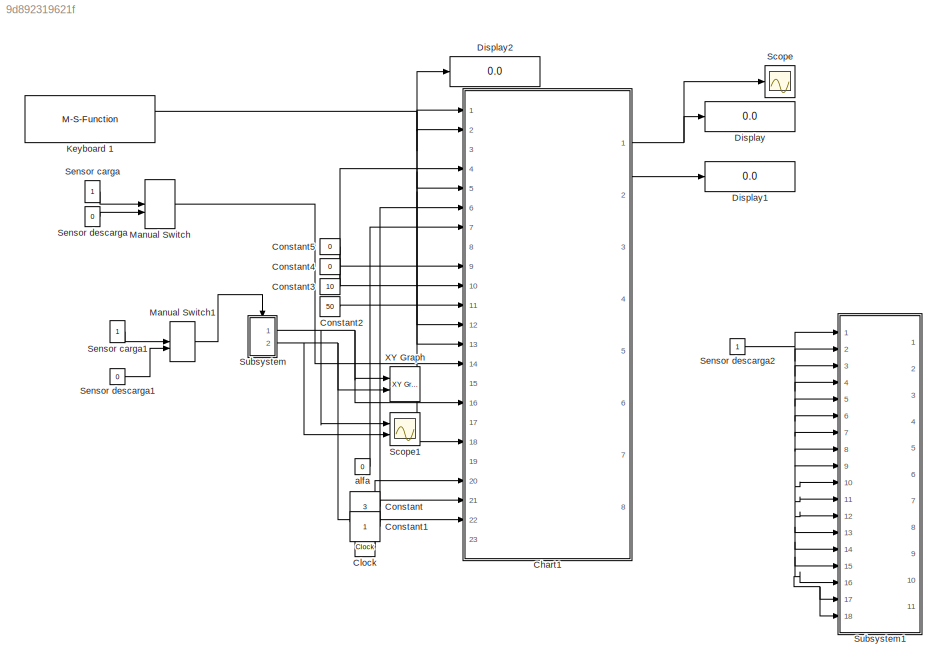
MODEL slx_9d892319621f
KIND model
CONFIG AbsTol = auto
CONFIG EnableMultiTasking = off
CONFIG FixedStep = 2e-2
CONFIG MaxStep = auto
CONFIG MinStep = auto
CONFIG RelTol = 1e-3
CONFIG SampleTimeConstraint = Unconstrained
CONFIG SolverName = FixedStepAuto
CONFIG StartTime = 0.0
CONFIG StopTime = inf
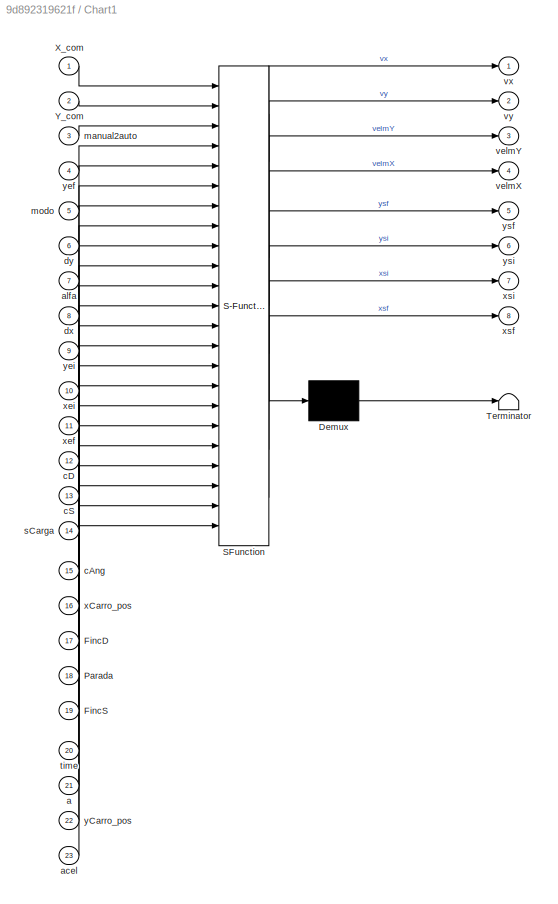
BLOCK [SubSystem] Chart1
  ErrorFcn = Stateflow.Translate.translate
  PermitHierarchicalResolution = ExplicitOnly
  PortSchema = {"entries":[{"content":{"sides":[{"content":{"connectorIds":["In5","In1","In2","In12","In13","In18","In14","In9","In10","In4","In11","In16","In22","In23","In15","In3","In17","In19","In7","In8","In6","In21","In20"]},"type":"ConnectorPlacement.EquallySpacedRectSide","uuid":"1e4dd542-1771-4859-b91f-fc1cb250280a"},{"content":{"connectorIds":["Out1","Out2","Out3","Out4","Out5","Out6","Out7","Out8"],"si...<+579ch>
  Ports = [23, 8]
  RequestExecContextInheritance = off
  SFBlockType = Chart
  TreatAsAtomicUnit = on
BLOCK [Demux] Chart1/ Demux 
  Outputs = 1
  Ports = [1, 1]
BLOCK [S-Function] Chart1/ SFunction 
  EnableBusSupport = on
  FunctionName = sf_sfun
  PortCounts = [23 9]
  Ports = [23, 9]
  SFcnIsStateOwnerBlock = off
  SFunctionDeploymentMode = off
  Tag = Stateflow S-Function 2
BLOCK [Terminator] Chart1/ Terminator 
BLOCK [Inport] Chart1/FincD
  Port = 17
BLOCK [Inport] Chart1/FincS
  Port = 19
BLOCK [Inport] Chart1/Parada
  Port = 18
BLOCK [Inport] Chart1/X_com
BLOCK [Inport] Chart1/Y_com
  Port = 2
BLOCK [Inport] Chart1/a
  Port = 21
BLOCK [Inport] Chart1/acel
  Port = 23
BLOCK [Inport] Chart1/alfa
  Port = 7
BLOCK [Inport] Chart1/cAng
  Port = 15
BLOCK [Inport] Chart1/cD
  Port = 12
BLOCK [Inport] Chart1/cS
  Port = 13
BLOCK [Inport] Chart1/dx
  Port = 8
BLOCK [Inport] Chart1/dy
  Port = 6
BLOCK [Inport] Chart1/manual2auto
  Port = 3
BLOCK [Inport] Chart1/modo
  Port = 5
BLOCK [Inport] Chart1/sCarga
  Port = 14
BLOCK [Inport] Chart1/time
  Port = 20
BLOCK [Outport] Chart1/velmX
  Port = 4
BLOCK [Outport] Chart1/velmY
  Port = 3
BLOCK [Outport] Chart1/vx
BLOCK [Outport] Chart1/vy
  Port = 2
BLOCK [Inport] Chart1/xCarro_pos
  Port = 16
BLOCK [Inport] Chart1/xef
  Port = 11
BLOCK [Inport] Chart1/xei
  Port = 10
BLOCK [Outport] Chart1/xsf
  Port = 8
BLOCK [Outport] Chart1/xsi
  Port = 7
BLOCK [Inport] Chart1/yCarro_pos
  Port = 22
BLOCK [Inport] Chart1/yef
  Port = 4
BLOCK [Inport] Chart1/yei
  Port = 9
BLOCK [Outport] Chart1/ysf
  Port = 5
BLOCK [Outport] Chart1/ysi
  Port = 6
BLOCK [Clock] Clock
BLOCK [Constant] Constant
  Value = 3
BLOCK [Constant] Constant1
BLOCK [Constant] Constant2
  Value = 50
BLOCK [Constant] Constant3
  Value = 10
BLOCK [Constant] Constant4
  Value = 0
BLOCK [Constant] Constant5
  Value = 0
BLOCK [Display] Display
  Decimation = 1
  Ports = [1]
BLOCK [Display] Display1
  Decimation = 1
  Ports = [1]
BLOCK [Display] Display2
  Decimation = 1
  Ports = [1]
BLOCK [M-S-Function] Keyboard 1
  FunctionName = sfun_keyboard_input_v1_2b
  Ports = [0, 2]
BLOCK [ManualSwitch] Manual Switch
BLOCK [ManualSwitch] Manual Switch1
  CurrentSetting = 0
BLOCK [Scope] Scope
  Floating = off
  NumInputPorts = 1
  Ports = [1]
  ScopeSpecificationString = Simulink.scopes.TimeScopeBlockCfg('CurrentConfiguration', extmgr.ConfigurationSet(extmgr.Configuration('Core','General UI',true),extmgr.Configuration('Core','Source UI',true),extmgr.Configuration('Sources','WiredSimulink',true),extmgr.Configuration('Visuals','Time Domain',true,'SerializedDisplays',{struct('MinYLimReal','-1.00000','MaxYLimReal','1.00000','YLabelReal','','MinYLimMag','0.00000','MaxY...<+1410ch>
BLOCK [Scope] Scope1
  Floating = off
  NumInputPorts = 2
  Ports = [2]
  ScopeSpecificationString = Simulink.scopes.TimeScopeBlockCfg('CurrentConfiguration', extmgr.ConfigurationSet(extmgr.Configuration('Core','General UI',true),extmgr.Configuration('Core','Source UI',true),extmgr.Configuration('Sources','WiredSimulink',true,'DataLoggingVariableName','ScopeData1'),extmgr.Configuration('Visuals','Time Domain',true,'SerializedDisplays',{struct('MinYLimReal','5.00000','MaxYLimReal','55.00000','YLab...<+1417ch>
BLOCK [Constant] Sensor carga
BLOCK [Constant] Sensor carga1
BLOCK [Constant] Sensor descarga
  Value = 0
BLOCK [Constant] Sensor descarga1
  Value = 0
BLOCK [Constant] Sensor descarga2
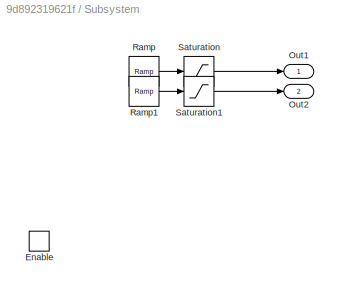
BLOCK [SubSystem] Subsystem
  Ports = [0, 2, 1]
  RequestExecContextInheritance = off
BLOCK [EnablePort] Subsystem/Enable
  Ports = []
BLOCK [Outport] Subsystem/Out1
BLOCK [Outport] Subsystem/Out2
  Port = 2
BLOCK [Reference] Subsystem/Ramp  REF=simulink/Sources/Ramp
  Ports = [0, 1]
  SourceBlock = simulink/Sources/Ramp
  SourceProductBaseCode = SL
  SourceType = Ramp
BLOCK [Reference] Subsystem/Ramp1  REF=simulink/Sources/Ramp
  Ports = [0, 1]
  SourceBlock = simulink/Sources/Ramp
  SourceProductBaseCode = SL
  SourceType = Ramp
BLOCK [Saturate] Subsystem/Saturation
  UpperLimit = 50
BLOCK [Saturate] Subsystem/Saturation1
  UpperLimit = 10
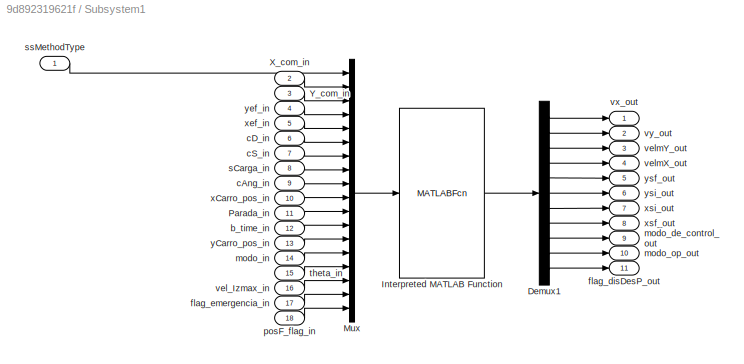
BLOCK [SubSystem] Subsystem1
  Ports = [18, 11]
  RequestExecContextInheritance = off
  SystemSampleTime = 0.1
  TreatAsAtomicUnit = on
BLOCK [Demux] Subsystem1/Demux1
  Outputs = 11
  Ports = [1, 11]
BLOCK [MATLABFcn] Subsystem1/Interpreted MATLAB Function
  MATLABFcn = Nivel1
  Output1D = off
  OutputDimensions = 11
  Ports = [1, 1]
BLOCK [Mux] Subsystem1/Mux
  DisplayOption = bar
  Inputs = 18
  Ports = [18, 1]
BLOCK [Inport] Subsystem1/Parada_in
  NameLocation = left
  Port = 11
BLOCK [Inport] Subsystem1/X_com_in
  NameLocation = left
  Port = 2
BLOCK [Inport] Subsystem1/Y_com_in
  NameLocation = left
  Port = 3
BLOCK [Inport] Subsystem1/b_time_in
  NameLocation = left
  Port = 12
BLOCK [Inport] Subsystem1/cAng_in
  NameLocation = left
  Port = 9
BLOCK [Inport] Subsystem1/cD_in
  NameLocation = left
  Port = 6
BLOCK [Inport] Subsystem1/cS_in
  NameLocation = left
  Port = 7
BLOCK [Outport] Subsystem1/flag_disDesP_out
  NameLocation = right
  Port = 11
BLOCK [Inport] Subsystem1/flag_emergencia_in
  NameLocation = left
  Port = 17
BLOCK [Outport] Subsystem1/modo_de_control_out
  NameLocation = right
  Port = 9
BLOCK [Inport] Subsystem1/modo_in
  NameLocation = left
  Port = 14
BLOCK [Outport] Subsystem1/modo_op_out
  NameLocation = right
  Port = 10
BLOCK [Inport] Subsystem1/posF_flag_in
  NameLocation = left
  Port = 18
BLOCK [Inport] Subsystem1/sCarga_in
  NameLocation = left
  Port = 8
BLOCK [Inport] Subsystem1/ssMethodType
  NameLocation = left
BLOCK [Inport] Subsystem1/theta_in
  NameLocation = left
  Port = 15
BLOCK [Inport] Subsystem1/vel_Izmax_in
  NameLocation = left
  Port = 16
BLOCK [Outport] Subsystem1/velmX_out
  NameLocation = right
  Port = 4
BLOCK [Outport] Subsystem1/velmY_out
  NameLocation = right
  Port = 3
BLOCK [Outport] Subsystem1/vx_out
  NameLocation = right
BLOCK [Outport] Subsystem1/vy_out
  NameLocation = right
  Port = 2
BLOCK [Inport] Subsystem1/xCarro_pos_in
  NameLocation = left
  Port = 10
BLOCK [Inport] Subsystem1/xef_in
  NameLocation = left
  Port = 5
BLOCK [Outport] Subsystem1/xsf_out
  NameLocation = right
  Port = 8
BLOCK [Outport] Subsystem1/xsi_out
  NameLocation = right
  Port = 7
BLOCK [Inport] Subsystem1/yCarro_pos_in
  NameLocation = left
  Port = 13
BLOCK [Inport] Subsystem1/yef_in
  NameLocation = left
  Port = 4
BLOCK [Outport] Subsystem1/ysf_out
  NameLocation = right
  Port = 5
BLOCK [Outport] Subsystem1/ysi_out
  NameLocation = right
  Port = 6
BLOCK [Reference] XY Graph  REF=simulink/Sinks/XY Graph
  Ports = [2]
  SourceBlock = simulink/Sinks/XY Graph
  SourceProductBaseCode = SL
  SourceType = XY scope.
BLOCK [Constant] alfa
  Value = 0
NET Chart1:1 -> Display:1, Scope:1
LINE Chart1:2 -> Display1:1
LINE Clock:1 -> Chart1:20
LINE Constant1:1 -> Chart1:21
LINE Constant2:1 -> Chart1:11
LINE Constant3:1 -> Chart1:4
LINE Constant4:1 -> Chart1:10
LINE Constant5:1 -> Chart1:9
LINE Constant:1 -> Chart1:6
NET Keyboard 1:1 -> Chart1:1, Chart1:12, Chart1:13, Chart1:18, Chart1:2, Chart1:5, Display2:1
LINE Manual Switch1:1 -> Subsystem:enable
LINE Manual Switch:1 -> Chart1:14
LINE Sensor carga1:1 -> Manual Switch1:1
LINE Sensor carga:1 -> Manual Switch:1
LINE Sensor descarga1:1 -> Manual Switch1:2
NET Sensor descarga2:1 -> Subsystem1:1, Subsystem1:10, Subsystem1:11, Subsystem1:12, Subsystem1:13, Subsystem1:14, Subsystem1:15, Subsystem1:16, Subsystem1:17, Subsystem1:18, Subsystem1:2, Subsystem1:3, Subsystem1:4, Subsystem1:5, Subsystem1:6, Subsystem1:7, Subsystem1:8, Subsystem1:9
LINE Sensor descarga:1 -> Manual Switch:2
LINE Subsystem/Ramp1:1 -> Subsystem/Saturation1:1
LINE Subsystem/Ramp:1 -> Subsystem/Saturation:1
LINE Subsystem/Saturation1:1 -> Subsystem/Out2:1
LINE Subsystem/Saturation:1 -> Subsystem/Out1:1
LINE Subsystem1/Demux1:1 -> Subsystem1/vx_out:1
LINE Subsystem1/Demux1:10 -> Subsystem1/modo_op_out:1
LINE Subsystem1/Demux1:11 -> Subsystem1/flag_disDesP_out:1
LINE Subsystem1/Demux1:2 -> Subsystem1/vy_out:1
LINE Subsystem1/Demux1:3 -> Subsystem1/velmY_out:1
LINE Subsystem1/Demux1:4 -> Subsystem1/velmX_out:1
LINE Subsystem1/Demux1:5 -> Subsystem1/ysf_out:1
LINE Subsystem1/Demux1:6 -> Subsystem1/ysi_out:1
LINE Subsystem1/Demux1:7 -> Subsystem1/xsi_out:1
LINE Subsystem1/Demux1:8 -> Subsystem1/xsf_out:1
LINE Subsystem1/Demux1:9 -> Subsystem1/modo_de_control_out:1
LINE Subsystem1/Interpreted MATLAB Function:1 -> Subsystem1/Demux1:1
LINE Subsystem1/Mux:1 -> Subsystem1/Interpreted MATLAB Function:1
LINE Subsystem1/Parada_in:1 -> Subsystem1/Mux:11
LINE Subsystem1/X_com_in:1 -> Subsystem1/Mux:2
LINE Subsystem1/Y_com_in:1 -> Subsystem1/Mux:3
LINE Subsystem1/b_time_in:1 -> Subsystem1/Mux:12
LINE Subsystem1/cAng_in:1 -> Subsystem1/Mux:9
LINE Subsystem1/cD_in:1 -> Subsystem1/Mux:6
LINE Subsystem1/cS_in:1 -> Subsystem1/Mux:7
LINE Subsystem1/flag_emergencia_in:1 -> Subsystem1/Mux:17
LINE Subsystem1/modo_in:1 -> Subsystem1/Mux:14
LINE Subsystem1/posF_flag_in:1 -> Subsystem1/Mux:18
LINE Subsystem1/sCarga_in:1 -> Subsystem1/Mux:8
LINE Subsystem1/ssMethodType:1 -> Subsystem1/Mux:1
LINE Subsystem1/theta_in:1 -> Subsystem1/Mux:15
LINE Subsystem1/vel_Izmax_in:1 -> Subsystem1/Mux:16
LINE Subsystem1/xCarro_pos_in:1 -> Subsystem1/Mux:10
LINE Subsystem1/xef_in:1 -> Subsystem1/Mux:5
LINE Subsystem1/yCarro_pos_in:1 -> Subsystem1/Mux:13
LINE Subsystem1/yef_in:1 -> Subsystem1/Mux:4
NET Subsystem:1 -> Chart1:16, Scope1:1, XY Graph:1
NET Subsystem:2 -> Chart1:22, Scope1:2, XY Graph:2
LINE alfa:1 -> Chart1:7
note: NET lines group one-source signal fan-out (src -> all destinations, sorted); 1:1 wires keep LINE
CHART Chart1 states=26 transitions=25
  STATE_LABEL 'Nivel1'
  STATE_LABEL 'Spreder'
  STATE_LABEL 'Descargado\nen:\nScargado=0'
  STATE_LABEL 'Cargado\nen:\nScargado=1'
  STATE_LABEL '[sCarga==1]'
  STATE_LABEL '[sCarga==0]'
  STATE_LABEL 'controlAngulo'
  STATE_LABEL 'Desactivado'
  STATE_LABEL 'Activado'
  STATE_LABEL '[cAng==0]'
  STATE_LABEL '[cAng==1]'
  STATE_LABEL 'modoOperacion'
  STATE_LABEL 'Automatico'
  STATE_LABEL 'CicloSimple'
  STATE_LABEL 'descaragBarco\nen :\nxsi=xei\nysi=yei\nxsf=xef\nysf=yef\nvelmX=4\nvelmY=1\ndu:\nerror=Calc_error(xsf,xCarro_pos,ysf,yCarro_pos)'
  STATE_LABEL 'cargaBarco\nen :\nxsi=xei\nysi=yei\nxsf=xef\nysf=yef\nvelmX=4\nvelmY=1\ndu:\nerror=Calc_error(xsf,xCarro_pos,ysf,yCarro_pos)\n'
  STATE_LABEL 'standby'
  STATE_LABEL 'idaBarco\nen :\nxsi=xei\nysi=yei\nxsf=xef\nysf=yef\nvelmX=4\nvelmY=1\ndu:\nerror=Calc_error(xsf,xCarro_pos,ysf,yCarro_pos)'
  STATE_LABEL 'vueltaMuelle\nen :\nxsi=xei\nysi=yei\nxsf=xef\nysf=yef\nvelmX=4\nvelmY=1\ndu:\nerror=Calc_error(xsf,xCarro_pos,ysf,yCarro_pos)'
  STATE_LABEL '[Scargado==1 && xCarro_pos<30 ]'
  STATE_LABEL '[Scargado==1 && xCarro_pos>30]'
  STATE_LABEL '[Scargado==0 && xCarro_pos>30]'
  STATE_LABEL '[Scargado==0 && xCarro_pos<30]'
  STATE_LABEL 'standby\nen:\nerror=inf'
  STATE_LABEL 'CicloDoble'
  STATE_LABEL 'cargaBarco\nen :\nxsi=xei\nysi=yei\nxsf=xef\nysf=yef\nvelmX=4\nvelmY=1\nerror=inf\ndu :\nerror=Calc_error(xsf,xCarro_pos,ysf,yCarro_pos)\n'
  STATE_LABEL 'descaragBarco\nen :\nxsi=xei\nysi=yei\nxsf=xef\nysf=yef\nvelmX=4\nvelmY=1\nerror=inf\ndu:\nerror=Calc_error(xsf,xCarro_pos,ysf,yCarro_pos)'
  STATE_LABEL 'standby'
  STATE_LABEL '[xCarro_pos<30]'
  STATE_LABEL '[xCarro_pos>30]'
  STATE_LABEL '[cS==115]'
  STATE_LABEL '[Parada==112 || FincS]'
  STATE_LABEL '[cD==100]'
  STATE_LABEL '[Parada==112 || FincD]'
  STATE_LABEL 'transicion\nen:\ntime_a=time\ndelta_t=0\ndu:\ndelta_t=time-time_a;\n[vx,vy]=Calc_v1(delta_t,vx,vy)\ntime_a=time;\nvx_a=vx;\nvy_a=vy;'
  STATE_LABEL 'modoManual\nen : opManual=1\n vx=0\n vy=0\n time_a=time\n vx_a=0\n vy_a=0\n error=0\n delta_t=0\ndu :\ndelta_t=time-time_a;\n[vx,vy]=Calc_v(delta_t,vx_a,vy_a,X_com,Y_com)\ntime_a=time;\nvx_a=vx;\nvy_a=vy;'
  STATE_LABEL 'transicion1\nen:\ntime_a=time\ndelta_t=0\ndu:\ndelta_t=time-time_a;\n[vx,vy]=Calc_v1(delta_t,vx,vy)\ntime_a=time;\nvx_a=vx;\nvy_a=vy;\n'
  STATE_LABEL '[abs(vx)<0.1 && abs(vy)<0.01]'
  STATE_LABEL '[modo==97 &&dy>2  ]'
  STATE_LABEL '[abs(vx)<0.1 && abs(vy)<0.01]'
CHART  states=0 transitions=0
